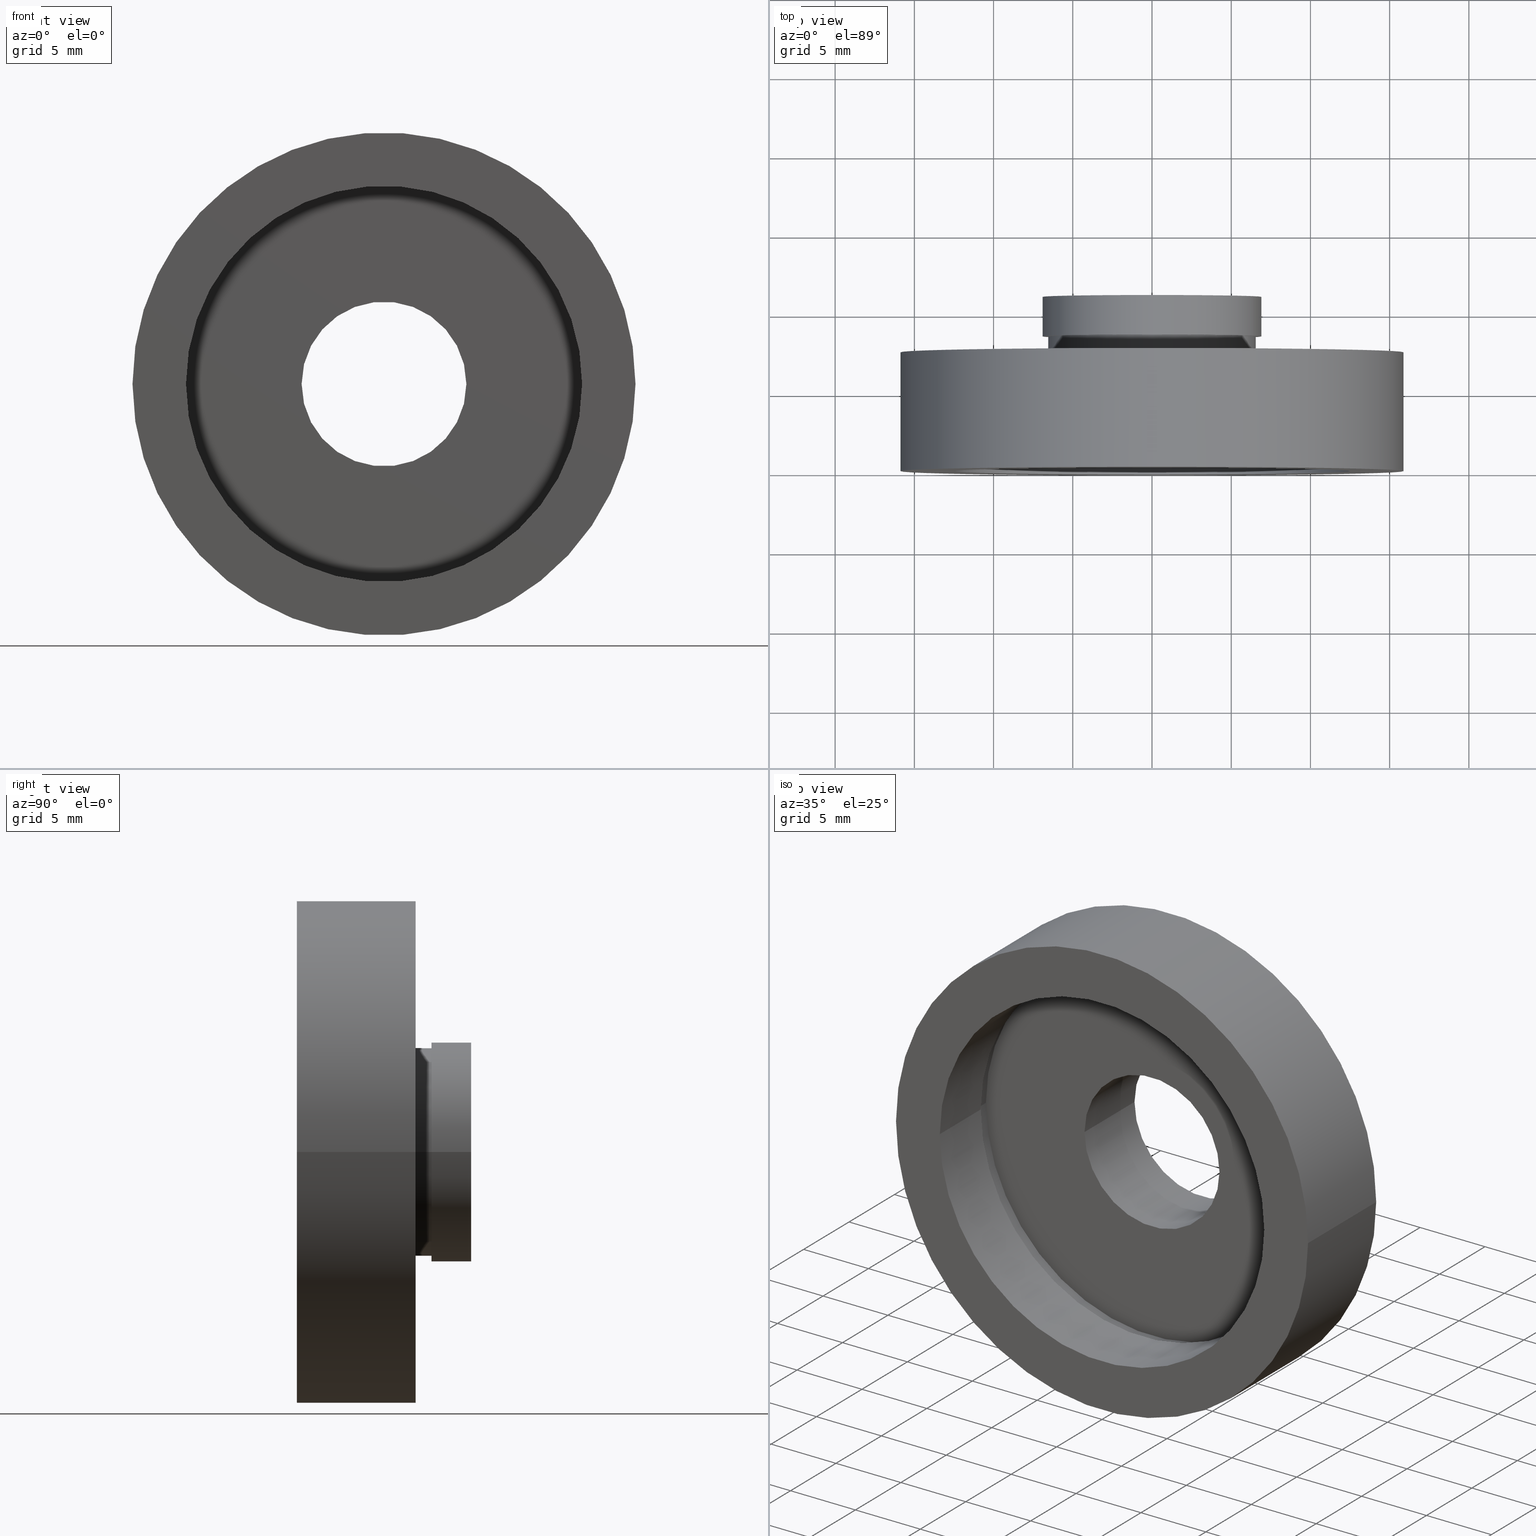
[diagram: canonical four-view strip — front | top / right | iso, engineering-drawing reading convention]
A machine part, canonical four-view strip (front | top / right | iso — engineering-drawing reading convention). The complete STEP part file that produces these views, byte-faithful:
ISO-10303-21;
HEADER;
FILE_DESCRIPTION (( 'STEP AP214' ),
    '1' );
FILE_NAME ('504131.STEP',
    '2019-10-10T02:04:13',
    ( '' ),
    ( '' ),
    'SwSTEP 2.0',
    'SolidWorks 2016',
    '' );
FILE_SCHEMA (( 'AUTOMOTIVE_DESIGN' ));
ENDSEC;

DATA;
#1 = PRODUCT_DEFINITION ( 'δ֪', '', #318, #32 ) ;
#2 = UNCERTAINTY_MEASURE_WITH_UNIT (LENGTH_MEASURE( 1.000000000000000100E-005 ), #277, 'distance_accuracy_value', 'NONE');
#3 =( NAMED_UNIT ( * ) PLANE_ANGLE_UNIT ( ) SI_UNIT ( $, .RADIAN. ) );
#4 = FACE_OUTER_BOUND ( 'NONE', #510, .T. ) ;
#5 = ORIENTED_EDGE ( 'NONE', *, *, #221, .T. ) ;
#6 = PRESENTATION_LAYER_ASSIGNMENT (  '', '', ( #48 ) ) ;
#7 = ORIENTED_EDGE ( 'NONE', *, *, #415, .F. ) ;
#8 = EDGE_CURVE ( 'NONE', #201, #610, #113, .T. ) ;
#9 = PLANE ( 'NONE',  #183 ) ;
#10 = VECTOR ( 'NONE', #122, 1000.000000000000000 ) ;
#11 = ORIENTED_EDGE ( 'NONE', *, *, #239, .T. ) ;
#12 = PRESENTATION_LAYER_ASSIGNMENT (  '', '', ( #102 ) ) ;
#13 = CARTESIAN_POINT ( 'NONE',  ( -6.900000000000000400, 10.99999999999999600, 0.0000000000000000000 ) ) ;
#14 = EDGE_CURVE ( 'NONE', #286, #478, #57, .T. ) ;
#15 = CIRCLE ( 'NONE', #581, 5.200000000000001100 ) ;
#16 = VERTEX_POINT ( 'NONE', #192 ) ;
#17 = ORIENTED_EDGE ( 'NONE', *, *, #578, .T. ) ;
#18 = DIRECTION ( 'NONE',  ( -1.000000000000000000, -1.355252715606880500E-016, 0.0000000000000000000 ) ) ;
#19 = DIRECTION ( 'NONE',  ( 1.000000000000000000, 1.224646799147351000E-016, 0.0000000000000000000 ) ) ;
#20 = AXIS2_PLACEMENT_3D ( 'NONE', #188, #521, #577 ) ;
#21 = ADVANCED_FACE ( 'NONE', ( #609, #476 ), #9, .F. ) ;
#22 = CARTESIAN_POINT ( 'NONE',  ( 0.0000000000000000000, 16.88601823708207700, 0.0000000000000000000 ) ) ;
#23 = FACE_BOUND ( 'NONE', #194, .T. ) ;
#24 = ORIENTED_EDGE ( 'NONE', *, *, #8, .F. ) ;
#25 = CARTESIAN_POINT ( 'NONE',  ( 1.149455719078122700E-015, 7.499999999999998200, 0.0000000000000000000 ) ) ;
#26 = ADVANCED_FACE ( 'NONE', ( #76 ), #234, .F. ) ;
#27 = MECHANICAL_DESIGN_GEOMETRIC_PRESENTATION_REPRESENTATION (  '', ( #419 ), #453 ) ;
#28 = DIRECTION ( 'NONE',  ( -1.224646799147351000E-016, 1.000000000000000000, -0.0000000000000000000 ) ) ;
#29 =( NAMED_UNIT ( * ) PLANE_ANGLE_UNIT ( ) SI_UNIT ( $, .RADIAN. ) );
#30 = ORIENTED_EDGE ( 'NONE', *, *, #473, .T. ) ;
#31 = MECHANICAL_DESIGN_GEOMETRIC_PRESENTATION_REPRESENTATION (  '', ( #48 ), #98 ) ;
#32 = PRODUCT_DEFINITION_CONTEXT ( 'detailed design', #368, 'design' ) ;
#33 = EDGE_CURVE ( 'NONE', #70, #493, #331, .T. ) ;
#34 =( NAMED_UNIT ( * ) SI_UNIT ( $, .STERADIAN. ) SOLID_ANGLE_UNIT ( ) );
#35 = FILL_AREA_STYLE_COLOUR ( '', #97 ) ;
#36 = DIRECTION ( 'NONE',  ( -1.224646799147351000E-016, 1.000000000000000000, -0.0000000000000000000 ) ) ;
#37 = VERTEX_POINT ( 'NONE', #13 ) ;
#38 = CARTESIAN_POINT ( 'NONE',  ( 1.516849758822328100E-015, 4.499999999999999100, 0.0000000000000000000 ) ) ;
#39 = FACE_OUTER_BOUND ( 'NONE', #603, .T. ) ;
#40 = STYLED_ITEM ( 'NONE', ( #535 ), #260 ) ;
#41 = UNCERTAINTY_MEASURE_WITH_UNIT (LENGTH_MEASURE( 1.000000000000000100E-005 ), #620, 'distance_accuracy_value', 'NONE');
#42 = DIRECTION ( 'NONE',  ( -1.224646799147351000E-016, 1.000000000000000000, -0.0000000000000000000 ) ) ;
#43 = SURFACE_STYLE_FILL_AREA ( #306 ) ;
#44 = CYLINDRICAL_SURFACE ( 'NONE', #336, 12.80000000000000100 ) ;
#45 = CARTESIAN_POINT ( 'NONE',  ( 0.0000000000000000000, 16.88601823708207700, 0.0000000000000000000 ) ) ;
#46 = EDGE_CURVE ( 'NONE', #436, #587, #451, .T. ) ;
#47 = EDGE_LOOP ( 'NONE', ( #228, #354, #125, #311 ) ) ;
#48 = STYLED_ITEM ( 'NONE', ( #342 ), #506 ) ;
#49 = ORIENTED_EDGE ( 'NONE', *, *, #330, .F. ) ;
#50 = STYLED_ITEM ( 'NONE', ( #602 ), #26 ) ;
#51 = LINE ( 'NONE', #185, #417 ) ;
#52 = CARTESIAN_POINT ( 'NONE',  ( 5.200000000000001100, 5.499999999999999100, 0.0000000000000000000 ) ) ;
#53 = FACE_BOUND ( 'NONE', #477, .T. ) ;
#54 = PLANE ( 'NONE',  #304 ) ;
#55 = FACE_OUTER_BOUND ( 'NONE', #347, .T. ) ;
#56 = CARTESIAN_POINT ( 'NONE',  ( 2.067940818438636500E-015, -3.469446951953614200E-015, 0.0000000000000000000 ) ) ;
#57 = CIRCLE ( 'NONE', #65, 6.549999999999998900 ) ;
#58 = EDGE_LOOP ( 'NONE', ( #107, #5 ) ) ;
#59 = STYLED_ITEM ( 'NONE', ( #546 ), #486 ) ;
#60 = ORIENTED_EDGE ( 'NONE', *, *, #340, .T. ) ;
#61 = DIRECTION ( 'NONE',  ( -1.224646799147351000E-016, 1.000000000000000000, -0.0000000000000000000 ) ) ;
#62 = UNCERTAINTY_MEASURE_WITH_UNIT (LENGTH_MEASURE( 1.000000000000000100E-005 ), #117, 'distance_accuracy_value', 'NONE');
#63 = CARTESIAN_POINT ( 'NONE',  ( 0.0000000000000000000, 16.88601823708207700, 0.0000000000000000000 ) ) ;
#64 = AXIS2_PLACEMENT_3D ( 'NONE', #187, #238, #284 ) ;
#65 = AXIS2_PLACEMENT_3D ( 'NONE', #527, #288, #335 ) ;
#66 = DIRECTION ( 'NONE',  ( -1.224646799147351000E-016, 1.000000000000000000, -0.0000000000000000000 ) ) ;
#67 = ORIENTED_EDGE ( 'NONE', *, *, #582, .T. ) ;
#68 = DIRECTION ( 'NONE',  ( -1.000000000000000000, -1.224646799147350700E-016, 0.0000000000000000000 ) ) ;
#69 = EDGE_CURVE ( 'NONE', #200, #99, #268, .T. ) ;
#70 = VERTEX_POINT ( 'NONE', #297 ) ;
#71 =( NAMED_UNIT ( * ) PLANE_ANGLE_UNIT ( ) SI_UNIT ( $, .RADIAN. ) );
#72 = DIRECTION ( 'NONE',  ( -1.224646799147351000E-016, 1.000000000000000000, -0.0000000000000000000 ) ) ;
#73 = AXIS2_PLACEMENT_3D ( 'NONE', #45, #573, #320 ) ;
#74 = DIRECTION ( 'NONE',  ( -1.224646799147351000E-016, 1.000000000000000000, -0.0000000000000000000 ) ) ;
#75 =( NAMED_UNIT ( * ) SI_UNIT ( $, .STERADIAN. ) SOLID_ANGLE_UNIT ( ) );
#76 = FACE_OUTER_BOUND ( 'NONE', #491, .T. ) ;
#77 = ADVANCED_FACE ( 'NONE', ( #468, #23 ), #392, .F. ) ;
#78 = CARTESIAN_POINT ( 'NONE',  ( 7.208293393765501500E-016, 10.99999999999999600, 0.0000000000000000000 ) ) ;
#79 = EDGE_CURVE ( 'NONE', #587, #436, #15, .T. ) ;
#80 = DIRECTION ( 'NONE',  ( -1.000000000000000000, 0.0000000000000000000, 0.0000000000000000000 ) ) ;
#81 = SURFACE_STYLE_USAGE ( .BOTH. , #455 ) ;
#82 = DIRECTION ( 'NONE',  ( -1.224646799147351000E-016, 1.000000000000000000, -0.0000000000000000000 ) ) ;
#83 = DIRECTION ( 'NONE',  ( -1.000000000000000000, -2.185478394931410600E-016, 0.0000000000000000000 ) ) ;
#84 = ORIENTED_EDGE ( 'NONE', *, *, #492, .T. ) ;
#85 = DIRECTION ( 'NONE',  ( -1.224646799147351000E-016, 1.000000000000000000, -0.0000000000000000000 ) ) ;
#86 = ORIENTED_EDGE ( 'NONE', *, *, #340, .F. ) ;
#87 = MECHANICAL_DESIGN_GEOMETRIC_PRESENTATION_REPRESENTATION (  '', ( #424 ), #140 ) ;
#88 = CARTESIAN_POINT ( 'NONE',  ( 0.0000000000000000000, 16.88601823708207700, 0.0000000000000000000 ) ) ;
#89 = CYLINDRICAL_SURFACE ( 'NONE', #490, 6.900000000000001200 ) ;
#90 = CARTESIAN_POINT ( 'NONE',  ( -6.899999999999999500, 8.500000000000000000, 0.0000000000000000000 ) ) ;
#91 = EDGE_CURVE ( 'NONE', #478, #286, #338, .T. ) ;
#92 = VECTOR ( 'NONE', #337, 1000.000000000000000 ) ;
#93 = EDGE_LOOP ( 'NONE', ( #434, #562, #580, #579 ) ) ;
#94 = PLANE ( 'NONE',  #198 ) ;
#95 = COLOUR_RGB ( '',1.000000000000000000, 1.000000000000000000, 1.000000000000000000 ) ;
#96 = AXIS2_PLACEMENT_3D ( 'NONE', #38, #375, #474 ) ;
#97 = COLOUR_RGB ( '',1.000000000000000000, 1.000000000000000000, 1.000000000000000000 ) ;
#98 =( GEOMETRIC_REPRESENTATION_CONTEXT ( 3 ) GLOBAL_UNCERTAINTY_ASSIGNED_CONTEXT ( ( #2 ) ) GLOBAL_UNIT_ASSIGNED_CONTEXT ( ( #277, #3, #571 ) ) REPRESENTATION_CONTEXT ( 'NONE', 'WORKASPACE' ) );
#99 = VERTEX_POINT ( 'NONE', #431 ) ;
#100 = ORIENTED_EDGE ( 'NONE', *, *, #425, .T. ) ;
#101 = LINE ( 'NONE', #618, #428 ) ;
#102 = STYLED_ITEM ( 'NONE', ( #135 ), #557 ) ;
#103 = CIRCLE ( 'NONE', #153, 15.87500000000000000 ) ;
#104 = COLOUR_RGB ( '',1.000000000000000000, 1.000000000000000000, 1.000000000000000000 ) ;
#105 = ORIENTED_EDGE ( 'NONE', *, *, #298, .T. ) ;
#106 = DIRECTION ( 'NONE',  ( -1.000000000000000000, -1.224646799147351200E-016, 0.0000000000000000000 ) ) ;
#107 = ORIENTED_EDGE ( 'NONE', *, *, #177, .T. ) ;
#108 = DIRECTION ( 'NONE',  ( -1.000000000000000000, -1.224646799147351000E-016, 0.0000000000000000000 ) ) ;
#109 = UNCERTAINTY_MEASURE_WITH_UNIT (LENGTH_MEASURE( 1.000000000000000100E-005 ), #321, 'distance_accuracy_value', 'NONE');
#110 = EDGE_CURVE ( 'NONE', #356, #407, #364, .T. ) ;
#111 = DIRECTION ( 'NONE',  ( -1.224646799147351000E-016, 1.000000000000000000, 0.0000000000000000000 ) ) ;
#112 = SURFACE_SIDE_STYLE ('',( #372 ) ) ;
#113 = CIRCLE ( 'NONE', #525, 6.900000000000000400 ) ;
#114 = ORIENTED_EDGE ( 'NONE', *, *, #69, .F. ) ;
#115 = ORIENTED_EDGE ( 'NONE', *, *, #473, .F. ) ;
#116 = ADVANCED_FACE ( 'NONE', ( #137 ), #44, .F. ) ;
#117 =( LENGTH_UNIT ( ) NAMED_UNIT ( * ) SI_UNIT ( .MILLI., .METRE. ) );
#118 = SURFACE_STYLE_FILL_AREA ( #624 ) ;
#119 = DIRECTION ( 'NONE',  ( -1.224646799147351000E-016, 1.000000000000000000, -0.0000000000000000000 ) ) ;
#120 = DIRECTION ( 'NONE',  ( -1.000000000000000000, -1.224646799147351000E-016, 0.0000000000000000000 ) ) ;
#121 = AXIS2_PLACEMENT_3D ( 'NONE', #256, #209, #167 ) ;
#122 = DIRECTION ( 'NONE',  ( -1.224646799147351000E-016, 1.000000000000000000, -0.0000000000000000000 ) ) ;
#123 = CARTESIAN_POINT ( 'NONE',  ( 0.0000000000000000000, 16.88601823708207700, 0.0000000000000000000 ) ) ;
#124 = CYLINDRICAL_SURFACE ( 'NONE', #572, 15.87500000000000000 ) ;
#125 = ORIENTED_EDGE ( 'NONE', *, *, #508, .F. ) ;
#126 = CARTESIAN_POINT ( 'NONE',  ( -6.549999999999998000, 8.500000000000000000, 0.0000000000000000000 ) ) ;
#127 = EDGE_LOOP ( 'NONE', ( #168, #176 ) ) ;
#128 = EDGE_CURVE ( 'NONE', #356, #478, #246, .T. ) ;
#129 = FILL_AREA_STYLE_COLOUR ( '', #104 ) ;
#130 = CIRCLE ( 'NONE', #159, 6.900000000000001200 ) ;
#131 = ADVANCED_FACE ( 'NONE', ( #560, #484 ), #54, .F. ) ;
#132 = CARTESIAN_POINT ( 'NONE',  ( 12.50000000000000200, 4.500000000000000900, 1.530808498934191500E-015 ) ) ;
#133 =( GEOMETRIC_REPRESENTATION_CONTEXT ( 3 ) GLOBAL_UNCERTAINTY_ASSIGNED_CONTEXT ( ( #225 ) ) GLOBAL_UNIT_ASSIGNED_CONTEXT ( ( #461, #616, #275 ) ) REPRESENTATION_CONTEXT ( 'NONE', 'WORKASPACE' ) );
#134 = SURFACE_SIDE_STYLE ('',( #482 ) ) ;
#135 = PRESENTATION_STYLE_ASSIGNMENT (( #398 ) ) ;
#136 = CARTESIAN_POINT ( 'NONE',  ( 0.0000000000000000000, 16.88601823708207700, 0.0000000000000000000 ) ) ;
#137 = FACE_OUTER_BOUND ( 'NONE', #529, .T. ) ;
#138 = ORIENTED_EDGE ( 'NONE', *, *, #405, .F. ) ;
#139 = ORIENTED_EDGE ( 'NONE', *, *, #389, .F. ) ;
#140 =( GEOMETRIC_REPRESENTATION_CONTEXT ( 3 ) GLOBAL_UNCERTAINTY_ASSIGNED_CONTEXT ( ( #328 ) ) GLOBAL_UNIT_ASSIGNED_CONTEXT ( ( #274, #29, #362 ) ) REPRESENTATION_CONTEXT ( 'NONE', 'WORKASPACE' ) );
#141 = SURFACE_STYLE_USAGE ( .BOTH. , #134 ) ;
#142 = EDGE_CURVE ( 'NONE', #99, #200, #240, .T. ) ;
#143 = DIRECTION ( 'NONE',  ( -1.224646799147351000E-016, 1.000000000000000000, -0.0000000000000000000 ) ) ;
#144 = DIRECTION ( 'NONE',  ( -1.224646799147351000E-016, 1.000000000000000000, -0.0000000000000000000 ) ) ;
#145 = APPLICATION_PROTOCOL_DEFINITION ( 'draft international standard', 'automotive_design', 1998, #232 ) ;
#146 = ORIENTED_EDGE ( 'NONE', *, *, #128, .F. ) ;
#147 = CARTESIAN_POINT ( 'NONE',  ( 0.0000000000000000000, 0.0000000000000000000, 0.0000000000000000000 ) ) ;
#148 = MECHANICAL_DESIGN_GEOMETRIC_PRESENTATION_REPRESENTATION (  '', ( #59 ), #559 ) ;
#149 = FILL_AREA_STYLE_COLOUR ( '', #95 ) ;
#150 = CARTESIAN_POINT ( 'NONE',  ( 5.200000000000001100, 11.00000000000000000, 0.0000000000000000000 ) ) ;
#151 = ORIENTED_EDGE ( 'NONE', *, *, #533, .F. ) ;
#152 = VERTEX_POINT ( 'NONE', #299 ) ;
#153 = AXIS2_PLACEMENT_3D ( 'NONE', #25, #253, #212 ) ;
#154 = ORIENTED_EDGE ( 'NONE', *, *, #363, .T. ) ;
#155 = EDGE_CURVE ( 'NONE', #365, #152, #421, .T. ) ;
#156 = DIRECTION ( 'NONE',  ( -1.000000000000000000, 0.0000000000000000000, 0.0000000000000000000 ) ) ;
#157 = CARTESIAN_POINT ( 'NONE',  ( 7.208293393765498600E-016, 11.00000000000000000, 0.0000000000000000000 ) ) ;
#158 = CYLINDRICAL_SURFACE ( 'NONE', #263, 15.87500000000000000 ) ;
#159 = AXIS2_PLACEMENT_3D ( 'NONE', #370, #329, #376 ) ;
#160 = DIRECTION ( 'NONE',  ( -1.000000000000000000, 0.0000000000000000000, 0.0000000000000000000 ) ) ;
#161 = ORIENTED_EDGE ( 'NONE', *, *, #298, .F. ) ;
#162 = SURFACE_STYLE_USAGE ( .BOTH. , #112 ) ;
#163 =( NAMED_UNIT ( * ) PLANE_ANGLE_UNIT ( ) SI_UNIT ( $, .RADIAN. ) );
#164 = CARTESIAN_POINT ( 'NONE',  ( 12.50000000000000200, 4.500000000000000000, 0.0000000000000000000 ) ) ;
#165 = CARTESIAN_POINT ( 'NONE',  ( 5.200000000000001100, 5.500000000000000900, 6.368163355566236400E-016 ) ) ;
#166 = COLOUR_RGB ( '',1.000000000000000000, 1.000000000000000000, 1.000000000000000000 ) ;
#167 = DIRECTION ( 'NONE',  ( -1.000000000000000000, -1.387778780781445700E-016, 0.0000000000000000000 ) ) ;
#168 = ORIENTED_EDGE ( 'NONE', *, *, #505, .F. ) ;
#169 = SURFACE_STYLE_USAGE ( .BOTH. , #502 ) ;
#170 = FACE_BOUND ( 'NONE', #195, .T. ) ;
#171 = PLANE ( 'NONE',  #564 ) ;
#172 = VECTOR ( 'NONE', #28, 1000.000000000000000 ) ;
#173 = DIRECTION ( 'NONE',  ( -1.224646799147351000E-016, 1.000000000000000000, -0.0000000000000000000 ) ) ;
#174 = VERTEX_POINT ( 'NONE', #165 ) ;
#175 = CARTESIAN_POINT ( 'NONE',  ( 1.516849758822328100E-015, 4.499999999999999100, 0.0000000000000000000 ) ) ;
#176 = ORIENTED_EDGE ( 'NONE', *, *, #110, .F. ) ;
#177 = EDGE_CURVE ( 'NONE', #423, #248, #227, .T. ) ;
#178 =( NAMED_UNIT ( * ) PLANE_ANGLE_UNIT ( ) SI_UNIT ( $, .RADIAN. ) );
#179 = CARTESIAN_POINT ( 'NONE',  ( -15.87500000000000000, 16.88601823708207300, 0.0000000000000000000 ) ) ;
#180 = DIRECTION ( 'NONE',  ( -1.000000000000000000, -1.224646799147351200E-016, 0.0000000000000000000 ) ) ;
#181 = ORIENTED_EDGE ( 'NONE', *, *, #8, .T. ) ;
#182 = SURFACE_STYLE_USAGE ( .BOTH. , #283 ) ;
#183 = AXIS2_PLACEMENT_3D ( 'NONE', #52, #586, #204 ) ;
#184 = PRESENTATION_STYLE_ASSIGNMENT (( #182 ) ) ;
#185 = CARTESIAN_POINT ( 'NONE',  ( 12.80000000000000100, 16.88601823708207700, 1.567547902908612200E-015 ) ) ;
#186 =( NAMED_UNIT ( * ) PLANE_ANGLE_UNIT ( ) SI_UNIT ( $, .RADIAN. ) );
#187 = CARTESIAN_POINT ( 'NONE',  ( 0.0000000000000000000, 16.88601823708207700, 0.0000000000000000000 ) ) ;
#188 = CARTESIAN_POINT ( 'NONE',  ( 1.149455719078122500E-015, 7.500000000000000000, 0.0000000000000000000 ) ) ;
#189 = VERTEX_POINT ( 'NONE', #396 ) ;
#190 = ORIENTED_EDGE ( 'NONE', *, *, #514, .F. ) ;
#191 = AXIS2_PLACEMENT_3D ( 'NONE', #123, #553, #80 ) ;
#192 = CARTESIAN_POINT ( 'NONE',  ( -12.49999999999999800, 4.499999999999997300, 0.0000000000000000000 ) ) ;
#193 = CIRCLE ( 'NONE', #524, 12.80000000000000100 ) ;
#194 = EDGE_LOOP ( 'NONE', ( #595, #332 ) ) ;
#195 = EDGE_LOOP ( 'NONE', ( #622, #319 ) ) ;
#196 = CIRCLE ( 'NONE', #412, 12.50000000000000000 ) ;
#197 = DIRECTION ( 'NONE',  ( -1.000000000000000000, 0.0000000000000000000, 0.0000000000000000000 ) ) ;
#198 = AXIS2_PLACEMENT_3D ( 'NONE', #150, #568, #614 ) ;
#199 = FACE_OUTER_BOUND ( 'NONE', #374, .T. ) ;
#200 = VERTEX_POINT ( 'NONE', #497 ) ;
#201 = VERTEX_POINT ( 'NONE', #548 ) ;
#202 = EDGE_CURVE ( 'NONE', #16, #377, #279, .T. ) ;
#203 = DIRECTION ( 'NONE',  ( -1.224646799147351000E-016, 1.000000000000000000, -0.0000000000000000000 ) ) ;
#204 = DIRECTION ( 'NONE',  ( -1.000000000000000000, -1.224646799147351000E-016, 0.0000000000000000000 ) ) ;
#205 = DIRECTION ( 'NONE',  ( -1.224646799147351000E-016, 1.000000000000000000, -0.0000000000000000000 ) ) ;
#206 = VERTEX_POINT ( 'NONE', #217 ) ;
#207 = DIRECTION ( 'NONE',  ( 1.224646799147351000E-016, -1.000000000000000000, 0.0000000000000000000 ) ) ;
#208 = ORIENTED_EDGE ( 'NONE', *, *, #155, .T. ) ;
#209 = DIRECTION ( 'NONE',  ( -1.224646799147351000E-016, 1.000000000000000000, -0.0000000000000000000 ) ) ;
#210 = CARTESIAN_POINT ( 'NONE',  ( 1.149455719078122700E-015, 7.499999999999998200, 0.0000000000000000000 ) ) ;
#211 = COLOUR_RGB ( '',1.000000000000000000, 1.000000000000000000, 1.000000000000000000 ) ;
#212 = DIRECTION ( 'NONE',  ( -1.000000000000000000, -1.092739197465705300E-016, 0.0000000000000000000 ) ) ;
#213 = ADVANCED_FACE ( 'NONE', ( #516 ), #124, .T. ) ;
#214 = AXIS2_PLACEMENT_3D ( 'NONE', #488, #537, #255 ) ;
#215 = VECTOR ( 'NONE', #85, 1000.000000000000000 ) ;
#216 = CIRCLE ( 'NONE', #512, 5.200000000000000200 ) ;
#217 = CARTESIAN_POINT ( 'NONE',  ( 6.900000000000002100, 10.99999999999999600, 8.450062914116738600E-016 ) ) ;
#218 = ADVANCED_FACE ( 'NONE', ( #619, #262 ), #352, .F. ) ;
#219 = DIRECTION ( 'NONE',  ( -1.000000000000000000, -1.355252715606880500E-016, 0.0000000000000000000 ) ) ;
#220 = LINE ( 'NONE', #445, #10 ) ;
#221 = EDGE_CURVE ( 'NONE', #248, #423, #103, .T. ) ;
#222 = ORIENTED_EDGE ( 'NONE', *, *, #46, .T. ) ;
#223 = PRODUCT ( '504131', '504131', '', ( #324 ) ) ;
#224 = DIRECTION ( 'NONE',  ( -1.000000000000000000, 0.0000000000000000000, 0.0000000000000000000 ) ) ;
#225 = UNCERTAINTY_MEASURE_WITH_UNIT (LENGTH_MEASURE( 1.000000000000000100E-005 ), #461, 'distance_accuracy_value', 'NONE');
#226 = CYLINDRICAL_SURFACE ( 'NONE', #257, 5.200000000000000200 ) ;
#227 = CIRCLE ( 'NONE', #501, 15.87500000000000000 ) ;
#228 = ORIENTED_EDGE ( 'NONE', *, *, #481, .T. ) ;
#229 = PRESENTATION_LAYER_ASSIGNMENT (  '', '', ( #424 ) ) ;
#230 = CARTESIAN_POINT ( 'NONE',  ( -12.79999999999999900, 4.499999999999997300, 0.0000000000000000000 ) ) ;
#231 = ORIENTED_EDGE ( 'NONE', *, *, #221, .F. ) ;
#232 = APPLICATION_CONTEXT ( 'automotive_design' ) ;
#233 = FILL_AREA_STYLE ('',( #519 ) ) ;
#234 = CYLINDRICAL_SURFACE ( 'NONE', #380, 12.50000000000000000 ) ;
#235 = EDGE_LOOP ( 'NONE', ( #146, #500, #84, #252 ) ) ;
#236 = ORIENTED_EDGE ( 'NONE', *, *, #69, .T. ) ;
#237 = CARTESIAN_POINT ( 'NONE',  ( 1.026991039163387500E-015, 8.500000000000000000, 0.0000000000000000000 ) ) ;
#238 = DIRECTION ( 'NONE',  ( -1.224646799147351000E-016, 1.000000000000000000, -0.0000000000000000000 ) ) ;
#239 = EDGE_CURVE ( 'NONE', #365, #189, #220, .T. ) ;
#240 = CIRCLE ( 'NONE', #371, 15.87499999999999600 ) ;
#241 = ORIENTED_EDGE ( 'NONE', *, *, #177, .F. ) ;
#242 = ORIENTED_EDGE ( 'NONE', *, *, #363, .F. ) ;
#243 = DIRECTION ( 'NONE',  ( -1.224646799147351000E-016, 1.000000000000000000, -0.0000000000000000000 ) ) ;
#244 = LINE ( 'NONE', #472, #598 ) ;
#245 = PRESENTATION_LAYER_ASSIGNMENT (  '', '', ( #40 ) ) ;
#246 = LINE ( 'NONE', #590, #92 ) ;
#247 = CLOSED_SHELL ( 'NONE', ( #213, #447, #260, #506, #116, #358, #218, #26, #308, #258, #21, #312, #541, #551, #77, #556, #131, #606 ) ) ;
#248 = VERTEX_POINT ( 'NONE', #450 ) ;
#249 = DIRECTION ( 'NONE',  ( -1.224646799147351000E-016, 1.000000000000000000, -0.0000000000000000000 ) ) ;
#250 =( NAMED_UNIT ( * ) PLANE_ANGLE_UNIT ( ) SI_UNIT ( $, .RADIAN. ) );
#251 = PRESENTATION_LAYER_ASSIGNMENT (  '', '', ( #59 ) ) ;
#252 = ORIENTED_EDGE ( 'NONE', *, *, #91, .F. ) ;
#253 = DIRECTION ( 'NONE',  ( -1.224646799147351000E-016, 1.000000000000000000, -0.0000000000000000000 ) ) ;
#254 = ORIENTED_EDGE ( 'NONE', *, *, #481, .F. ) ;
#255 = DIRECTION ( 'NONE',  ( -1.000000000000000000, 0.0000000000000000000, 0.0000000000000000000 ) ) ;
#256 = CARTESIAN_POINT ( 'NONE',  ( 1.516849758822328100E-015, 4.499999999999999100, 0.0000000000000000000 ) ) ;
#257 = AXIS2_PLACEMENT_3D ( 'NONE', #438, #460, #310 ) ;
#258 = ADVANCED_FACE ( 'NONE', ( #199 ), #433, .F. ) ;
#259 = DIRECTION ( 'NONE',  ( -1.000000000000000000, -1.355252715606880500E-016, 0.0000000000000000000 ) ) ;
#260 = ADVANCED_FACE ( 'NONE', ( #294 ), #89, .T. ) ;
#261 = DIRECTION ( 'NONE',  ( -1.000000000000000000, 0.0000000000000000000, 0.0000000000000000000 ) ) ;
#262 = FACE_BOUND ( 'NONE', #269, .T. ) ;
#263 = AXIS2_PLACEMENT_3D ( 'NONE', #565, #143, #83 ) ;
#264 = CARTESIAN_POINT ( 'NONE',  ( 1.394385078907592800E-015, 5.500000000000000000, 0.0000000000000000000 ) ) ;
#265 = DIRECTION ( 'NONE',  ( -1.224646799147351000E-016, 1.000000000000000000, -0.0000000000000000000 ) ) ;
#266 = CARTESIAN_POINT ( 'NONE',  ( -5.200000000000000200, 11.00000000000000000, 0.0000000000000000000 ) ) ;
#267 = CARTESIAN_POINT ( 'NONE',  ( 6.550000000000000700, 7.500000000000000900, 8.021436534415164200E-016 ) ) ;
#268 = CIRCLE ( 'NONE', #443, 15.87499999999999600 ) ;
#269 = EDGE_LOOP ( 'NONE', ( #333, #523 ) ) ;
#270 = EDGE_CURVE ( 'NONE', #378, #189, #193, .T. ) ;
#271 = ORIENTED_EDGE ( 'NONE', *, *, #202, .F. ) ;
#272 = CARTESIAN_POINT ( 'NONE',  ( 1.394385078907592800E-015, 5.500000000000000000, 0.0000000000000000000 ) ) ;
#273 = SURFACE_STYLE_USAGE ( .BOTH. , #278 ) ;
#274 =( LENGTH_UNIT ( ) NAMED_UNIT ( * ) SI_UNIT ( .MILLI., .METRE. ) );
#275 =( NAMED_UNIT ( * ) SI_UNIT ( $, .STERADIAN. ) SOLID_ANGLE_UNIT ( ) );
#276 = VECTOR ( 'NONE', #72, 1000.000000000000000 ) ;
#277 =( LENGTH_UNIT ( ) NAMED_UNIT ( * ) SI_UNIT ( .MILLI., .METRE. ) );
#278 = SURFACE_SIDE_STYLE ('',( #300 ) ) ;
#279 = CIRCLE ( 'NONE', #121, 12.50000000000000000 ) ;
#280 =( NAMED_UNIT ( * ) PLANE_ANGLE_UNIT ( ) SI_UNIT ( $, .RADIAN. ) );
#281 = AXIS2_PLACEMENT_3D ( 'NONE', #341, #435, #390 ) ;
#282 = SURFACE_STYLE_FILL_AREA ( #233 ) ;
#283 = SURFACE_SIDE_STYLE ('',( #282 ) ) ;
#284 = DIRECTION ( 'NONE',  ( -1.000000000000000000, 0.0000000000000000000, 0.0000000000000000000 ) ) ;
#285 = SURFACE_STYLE_USAGE ( .BOTH. , #322 ) ;
#286 = VERTEX_POINT ( 'NONE', #126 ) ;
#287 = DIRECTION ( 'NONE',  ( -1.000000000000000000, 0.0000000000000000000, 0.0000000000000000000 ) ) ;
#288 = DIRECTION ( 'NONE',  ( -1.224646799147351000E-016, 1.000000000000000000, -0.0000000000000000000 ) ) ;
#289 = EDGE_LOOP ( 'NONE', ( #208, #386 ) ) ;
#290 =( NAMED_UNIT ( * ) SI_UNIT ( $, .STERADIAN. ) SOLID_ANGLE_UNIT ( ) );
#291 = CYLINDRICAL_SURFACE ( 'NONE', #592, 12.50000000000000000 ) ;
#292 = AXIS2_PLACEMENT_3D ( 'NONE', #88, #418, #413 ) ;
#293 = CARTESIAN_POINT ( 'NONE',  ( 2.067940818438636100E-015, 0.0000000000000000000, 0.0000000000000000000 ) ) ;
#294 = FACE_OUTER_BOUND ( 'NONE', #47, .T. ) ;
#295 = EDGE_LOOP ( 'NONE', ( #86, #30, #594, #49 ) ) ;
#296 = ORIENTED_EDGE ( 'NONE', *, *, #33, .F. ) ;
#297 = CARTESIAN_POINT ( 'NONE',  ( 12.50000000000000200, 1.530808498934189000E-015, 1.530808498934191500E-015 ) ) ;
#298 = EDGE_CURVE ( 'NONE', #189, #378, #475, .T. ) ;
#299 = CARTESIAN_POINT ( 'NONE',  ( 12.80000000000000200, 4.500000000000000900, 1.567547902908612200E-015 ) ) ;
#300 = SURFACE_STYLE_FILL_AREA ( #570 ) ;
#301 = EDGE_LOOP ( 'NONE', ( #236, #67, #241, #422 ) ) ;
#302 = CARTESIAN_POINT ( 'NONE',  ( 2.067940818438636500E-015, -3.469446951953614200E-015, 0.0000000000000000000 ) ) ;
#303 = FILL_AREA_STYLE ('',( #549 ) ) ;
#304 = AXIS2_PLACEMENT_3D ( 'NONE', #487, #207, #596 ) ;
#305 = UNCERTAINTY_MEASURE_WITH_UNIT (LENGTH_MEASURE( 1.000000000000000100E-005 ), #315, 'distance_accuracy_value', 'NONE');
#306 = FILL_AREA_STYLE ('',( #129 ) ) ;
#307 = EDGE_CURVE ( 'NONE', #610, #37, #395, .T. ) ;
#308 = ADVANCED_FACE ( 'NONE', ( #53, #543 ), #171, .F. ) ;
#309 = CARTESIAN_POINT ( 'NONE',  ( 5.200000000000001100, 11.00000000000000000, 6.368163355566236400E-016 ) ) ;
#310 = DIRECTION ( 'NONE',  ( -1.000000000000000000, 0.0000000000000000000, 0.0000000000000000000 ) ) ;
#311 = ORIENTED_EDGE ( 'NONE', *, *, #307, .F. ) ;
#312 = ADVANCED_FACE ( 'NONE', ( #617 ), #226, .F. ) ;
#313 = CARTESIAN_POINT ( 'NONE',  ( -6.549999999999998900, 7.499999999999999100, 0.0000000000000000000 ) ) ;
#314 =( GEOMETRIC_REPRESENTATION_CONTEXT ( 3 ) GLOBAL_UNCERTAINTY_ASSIGNED_CONTEXT ( ( #305 ) ) GLOBAL_UNIT_ASSIGNED_CONTEXT ( ( #315, #178, #563 ) ) REPRESENTATION_CONTEXT ( 'NONE', 'WORKASPACE' ) );
#315 =( LENGTH_UNIT ( ) NAMED_UNIT ( * ) SI_UNIT ( .MILLI., .METRE. ) );
#316 = EDGE_LOOP ( 'NONE', ( #388, #17 ) ) ;
#317 = AXIS2_PLACEMENT_3D ( 'NONE', #498, #496, #120 ) ;
#318 = PRODUCT_DEFINITION_FORMATION_WITH_SPECIFIED_SOURCE ( '�κ�', '', #223, .NOT_KNOWN. ) ;
#319 = ORIENTED_EDGE ( 'NONE', *, *, #79, .F. ) ;
#320 = DIRECTION ( 'NONE',  ( -1.000000000000000000, 0.0000000000000000000, 0.0000000000000000000 ) ) ;
#321 =( LENGTH_UNIT ( ) NAMED_UNIT ( * ) SI_UNIT ( .MILLI., .METRE. ) );
#322 = SURFACE_SIDE_STYLE ('',( #118 ) ) ;
#323 = LINE ( 'NONE', #360, #554 ) ;
#324 = PRODUCT_CONTEXT ( 'NONE', #232, 'mechanical' ) ;
#325 = DIRECTION ( 'NONE',  ( -1.000000000000000000, 0.0000000000000000000, 0.0000000000000000000 ) ) ;
#326 =( GEOMETRIC_REPRESENTATION_CONTEXT ( 3 ) GLOBAL_UNCERTAINTY_ASSIGNED_CONTEXT ( ( #384 ) ) GLOBAL_UNIT_ASSIGNED_CONTEXT ( ( #406, #71, #75 ) ) REPRESENTATION_CONTEXT ( 'NONE', 'WORKASPACE' ) );
#327 = ORIENTED_EDGE ( 'NONE', *, *, #432, .F. ) ;
#328 = UNCERTAINTY_MEASURE_WITH_UNIT (LENGTH_MEASURE( 1.000000000000000100E-005 ), #274, 'distance_accuracy_value', 'NONE');
#329 = DIRECTION ( 'NONE',  ( -1.224646799147351000E-016, 1.000000000000000000, -0.0000000000000000000 ) ) ;
#330 = EDGE_CURVE ( 'NONE', #339, #436, #449, .T. ) ;
#331 = CIRCLE ( 'NONE', #429, 12.50000000000000000 ) ;
#332 = ORIENTED_EDGE ( 'NONE', *, *, #91, .T. ) ;
#333 = ORIENTED_EDGE ( 'NONE', *, *, #405, .T. ) ;
#334 = VECTOR ( 'NONE', #509, 1000.000000000000000 ) ;
#335 = DIRECTION ( 'NONE',  ( -1.000000000000000000, 0.0000000000000000000, 0.0000000000000000000 ) ) ;
#336 = AXIS2_PLACEMENT_3D ( 'NONE', #534, #593, #160 ) ;
#337 = DIRECTION ( 'NONE',  ( -1.224646799147351000E-016, 1.000000000000000000, -0.0000000000000000000 ) ) ;
#338 = CIRCLE ( 'NONE', #214, 6.549999999999998900 ) ;
#339 = VERTEX_POINT ( 'NONE', #555 ) ;
#340 = EDGE_CURVE ( 'NONE', #174, #339, #465, .T. ) ;
#341 = CARTESIAN_POINT ( 'NONE',  ( 7.208293393765498600E-016, 11.00000000000000000, 0.0000000000000000000 ) ) ;
#342 = PRESENTATION_STYLE_ASSIGNMENT (( #285 ) ) ;
#343 =( NAMED_UNIT ( * ) SI_UNIT ( $, .STERADIAN. ) SOLID_ANGLE_UNIT ( ) );
#344 = FILL_AREA_STYLE ('',( #399 ) ) ;
#345 = COLOUR_RGB ( '',1.000000000000000000, 1.000000000000000000, 1.000000000000000000 ) ;
#346 = ORIENTED_EDGE ( 'NONE', *, *, #415, .T. ) ;
#347 = EDGE_LOOP ( 'NONE', ( #611, #381, #100, #231 ) ) ;
#348 = DIRECTION ( 'NONE',  ( -1.224646799147351000E-016, 1.000000000000000000, -0.0000000000000000000 ) ) ;
#349 = PRESENTATION_LAYER_ASSIGNMENT (  '', '', ( #441 ) ) ;
#350 = PRODUCT_RELATED_PRODUCT_CATEGORY ( 'part', '', ( #223 ) ) ;
#351 = CIRCLE ( 'NONE', #20, 6.549999999999999800 ) ;
#352 = PLANE ( 'NONE',  #317 ) ;
#353 = CARTESIAN_POINT ( 'NONE',  ( 1.394385078907593000E-015, 5.499999999999998200, 0.0000000000000000000 ) ) ;
#354 = ORIENTED_EDGE ( 'NONE', *, *, #514, .T. ) ;
#355 = SURFACE_SIDE_STYLE ('',( #43 ) ) ;
#356 = VERTEX_POINT ( 'NONE', #267 ) ;
#357 = AXIS2_PLACEMENT_3D ( 'NONE', #78, #401, #517 ) ;
#358 = ADVANCED_FACE ( 'NONE', ( #4 ), #291, .F. ) ;
#359 = CIRCLE ( 'NONE', #96, 12.50000000000000000 ) ;
#360 = CARTESIAN_POINT ( 'NONE',  ( -12.50000000000000000, 16.88601823708207700, 0.0000000000000000000 ) ) ;
#361 = AXIS2_PLACEMENT_3D ( 'NONE', #591, #542, #393 ) ;
#362 =( NAMED_UNIT ( * ) SI_UNIT ( $, .STERADIAN. ) SOLID_ANGLE_UNIT ( ) );
#363 = EDGE_CURVE ( 'NONE', #493, #16, #323, .T. ) ;
#364 = CIRCLE ( 'NONE', #615, 6.549999999999999800 ) ;
#365 = VERTEX_POINT ( 'NONE', #230 ) ;
#366 = DIRECTION ( 'NONE',  ( -1.224646799147351000E-016, 1.000000000000000000, -0.0000000000000000000 ) ) ;
#367 = ORIENTED_EDGE ( 'NONE', *, *, #202, .T. ) ;
#368 = APPLICATION_CONTEXT ( 'automotive_design' ) ;
#369 = DIRECTION ( 'NONE',  ( 0.0000000000000000000, 0.0000000000000000000, 1.000000000000000000 ) ) ;
#370 = CARTESIAN_POINT ( 'NONE',  ( 7.208293393765501500E-016, 10.99999999999999600, 0.0000000000000000000 ) ) ;
#371 = AXIS2_PLACEMENT_3D ( 'NONE', #302, #119, #68 ) ;
#372 = SURFACE_STYLE_FILL_AREA ( #382 ) ;
#373 = FILL_AREA_STYLE_COLOUR ( '', #166 ) ;
#374 = EDGE_LOOP ( 'NONE', ( #518, #569, #11, #105 ) ) ;
#375 = DIRECTION ( 'NONE',  ( -1.224646799147351000E-016, 1.000000000000000000, -0.0000000000000000000 ) ) ;
#376 = DIRECTION ( 'NONE',  ( -1.000000000000000000, 0.0000000000000000000, 0.0000000000000000000 ) ) ;
#377 = VERTEX_POINT ( 'NONE', #132 ) ;
#378 = VERTEX_POINT ( 'NONE', #507 ) ;
#379 = AXIS2_PLACEMENT_3D ( 'NONE', #264, #173, #458 ) ;
#380 = AXIS2_PLACEMENT_3D ( 'NONE', #437, #66, #197 ) ;
#381 = ORIENTED_EDGE ( 'NONE', *, *, #142, .T. ) ;
#382 = FILL_AREA_STYLE ('',( #589 ) ) ;
#383 = DIRECTION ( 'NONE',  ( -1.000000000000000000, -1.224646799147350700E-016, 0.0000000000000000000 ) ) ;
#384 = UNCERTAINTY_MEASURE_WITH_UNIT (LENGTH_MEASURE( 1.000000000000000100E-005 ), #406, 'distance_accuracy_value', 'NONE');
#385 = CARTESIAN_POINT ( 'NONE',  ( 6.900000000000001200, 8.500000000000000000, 0.0000000000000000000 ) ) ;
#386 = ORIENTED_EDGE ( 'NONE', *, *, #389, .T. ) ;
#387 = MECHANICAL_DESIGN_GEOMETRIC_PRESENTATION_REPRESENTATION (  '', ( #441 ), #314 ) ;
#388 = ORIENTED_EDGE ( 'NONE', *, *, #508, .T. ) ;
#389 = EDGE_CURVE ( 'NONE', #152, #365, #430, .T. ) ;
#390 = DIRECTION ( 'NONE',  ( -1.000000000000000000, 0.0000000000000000000, 0.0000000000000000000 ) ) ;
#391 = DIRECTION ( 'NONE',  ( -1.224646799147351000E-016, 1.000000000000000000, -0.0000000000000000000 ) ) ;
#392 = PLANE ( 'NONE',  #547 ) ;
#393 = DIRECTION ( 'NONE',  ( -1.000000000000000000, -1.355252715606880500E-016, 0.0000000000000000000 ) ) ;
#394 = PRESENTATION_STYLE_ASSIGNMENT (( #141 ) ) ;
#395 = LINE ( 'NONE', #597, #276 ) ;
#396 = CARTESIAN_POINT ( 'NONE',  ( -12.79999999999999900, 5.499999999999996400, 0.0000000000000000000 ) ) ;
#397 = DIRECTION ( 'NONE',  ( -1.000000000000000000, -2.185478394931410600E-016, 0.0000000000000000000 ) ) ;
#398 = SURFACE_STYLE_USAGE ( .BOTH. , #355 ) ;
#399 = FILL_AREA_STYLE_COLOUR ( '', #411 ) ;
#400 = DIRECTION ( 'NONE',  ( -1.000000000000000000, 0.0000000000000000000, 0.0000000000000000000 ) ) ;
#401 = DIRECTION ( 'NONE',  ( -1.224646799147351000E-016, 1.000000000000000000, -0.0000000000000000000 ) ) ;
#402 = CIRCLE ( 'NONE', #357, 6.900000000000001200 ) ;
#403 = CARTESIAN_POINT ( 'NONE',  ( 2.067940818438636100E-015, 0.0000000000000000000, 0.0000000000000000000 ) ) ;
#404 = EDGE_LOOP ( 'NONE', ( #115, #7, #470, #222 ) ) ;
#405 = EDGE_CURVE ( 'NONE', #493, #70, #196, .T. ) ;
#406 =( LENGTH_UNIT ( ) NAMED_UNIT ( * ) SI_UNIT ( .MILLI., .METRE. ) );
#407 = VERTEX_POINT ( 'NONE', #313 ) ;
#408 = CARTESIAN_POINT ( 'NONE',  ( -5.200000000000000200, 16.88601823708207700, 0.0000000000000000000 ) ) ;
#409 = DIRECTION ( 'NONE',  ( -1.000000000000000000, -1.668003342285391300E-016, 0.0000000000000000000 ) ) ;
#410 = APPLICATION_PROTOCOL_DEFINITION ( 'draft international standard', 'automotive_design', 1998, #368 ) ;
#411 = COLOUR_RGB ( '',1.000000000000000000, 1.000000000000000000, 1.000000000000000000 ) ;
#412 = AXIS2_PLACEMENT_3D ( 'NONE', #403, #511, #180 ) ;
#413 = DIRECTION ( 'NONE',  ( -1.000000000000000000, 0.0000000000000000000, 0.0000000000000000000 ) ) ;
#414 = MECHANICAL_DESIGN_GEOMETRIC_PRESENTATION_REPRESENTATION (  '', ( #50 ), #513 ) ;
#415 = EDGE_CURVE ( 'NONE', #339, #174, #216, .T. ) ;
#416 = DIRECTION ( 'NONE',  ( 1.000000000000000000, 0.0000000000000000000, 0.0000000000000000000 ) ) ;
#417 = VECTOR ( 'NONE', #42, 1000.000000000000000 ) ;
#418 = DIRECTION ( 'NONE',  ( -1.224646799147351000E-016, 1.000000000000000000, -0.0000000000000000000 ) ) ;
#419 = STYLED_ITEM ( 'NONE', ( #184 ), #551 ) ;
#420 = DIRECTION ( 'NONE',  ( -1.224646799147351000E-016, 1.000000000000000000, -0.0000000000000000000 ) ) ;
#421 = CIRCLE ( 'NONE', #467, 12.80000000000000100 ) ;
#422 = ORIENTED_EDGE ( 'NONE', *, *, #425, .F. ) ;
#423 = VERTEX_POINT ( 'NONE', #566 ) ;
#424 = STYLED_ITEM ( 'NONE', ( #394 ), #358 ) ;
#425 = EDGE_CURVE ( 'NONE', #200, #423, #448, .T. ) ;
#426 = SURFACE_STYLE_FILL_AREA ( #344 ) ;
#427 = ORIENTED_EDGE ( 'NONE', *, *, #533, .T. ) ;
#428 = VECTOR ( 'NONE', #144, 1000.000000000000000 ) ;
#429 = AXIS2_PLACEMENT_3D ( 'NONE', #293, #249, #106 ) ;
#430 = CIRCLE ( 'NONE', #457, 12.80000000000000100 ) ;
#431 = CARTESIAN_POINT ( 'NONE',  ( 15.87500000000000000, -1.525320158307194900E-015, 1.944126793646423200E-015 ) ) ;
#432 = EDGE_CURVE ( 'NONE', #70, #377, #464, .T. ) ;
#433 = CYLINDRICAL_SURFACE ( 'NONE', #601, 12.80000000000000100 ) ;
#434 = ORIENTED_EDGE ( 'NONE', *, *, #505, .T. ) ;
#435 = DIRECTION ( 'NONE',  ( -1.224646799147351000E-016, 1.000000000000000000, -0.0000000000000000000 ) ) ;
#436 = VERTEX_POINT ( 'NONE', #266 ) ;
#437 = CARTESIAN_POINT ( 'NONE',  ( 0.0000000000000000000, 16.88601823708207700, 0.0000000000000000000 ) ) ;
#438 = CARTESIAN_POINT ( 'NONE',  ( 0.0000000000000000000, 16.88601823708207700, 0.0000000000000000000 ) ) ;
#439 = DIRECTION ( 'NONE',  ( -1.224646799147351000E-016, 1.000000000000000000, -0.0000000000000000000 ) ) ;
#440 = ORIENTED_EDGE ( 'NONE', *, *, #538, .T. ) ;
#441 = STYLED_ITEM ( 'NONE', ( #459 ), #312 ) ;
#442 = EDGE_LOOP ( 'NONE', ( #254, #24 ) ) ;
#443 = AXIS2_PLACEMENT_3D ( 'NONE', #56, #61, #383 ) ;
#444 = DIRECTION ( 'NONE',  ( -1.224646799147351000E-016, 1.000000000000000000, -0.0000000000000000000 ) ) ;
#445 = CARTESIAN_POINT ( 'NONE',  ( -12.80000000000000100, 16.88601823708207700, 0.0000000000000000000 ) ) ;
#446 = FACE_OUTER_BOUND ( 'NONE', #295, .T. ) ;
#447 = ADVANCED_FACE ( 'NONE', ( #583 ), #613, .T. ) ;
#448 = LINE ( 'NONE', #179, #215 ) ;
#449 = LINE ( 'NONE', #408, #172 ) ;
#450 = CARTESIAN_POINT ( 'NONE',  ( 15.87500000000000000, 7.500000000000000000, 1.944126793646423200E-015 ) ) ;
#451 = CIRCLE ( 'NONE', #281, 5.200000000000001100 ) ;
#452 = ORIENTED_EDGE ( 'NONE', *, *, #307, .T. ) ;
#453 =( GEOMETRIC_REPRESENTATION_CONTEXT ( 3 ) GLOBAL_UNCERTAINTY_ASSIGNED_CONTEXT ( ( #41 ) ) GLOBAL_UNIT_ASSIGNED_CONTEXT ( ( #620, #280, #290 ) ) REPRESENTATION_CONTEXT ( 'NONE', 'WORKASPACE' ) );
#454 = ORIENTED_EDGE ( 'NONE', *, *, #142, .F. ) ;
#455 = SURFACE_SIDE_STYLE ('',( #426 ) ) ;
#456 = UNCERTAINTY_MEASURE_WITH_UNIT (LENGTH_MEASURE( 1.000000000000000100E-005 ), #540, 'distance_accuracy_value', 'NONE');
#457 = AXIS2_PLACEMENT_3D ( 'NONE', #175, #366, #219 ) ;
#458 = DIRECTION ( 'NONE',  ( -1.000000000000000000, -1.668003342285391300E-016, 0.0000000000000000000 ) ) ;
#459 = PRESENTATION_STYLE_ASSIGNMENT (( #81 ) ) ;
#460 = DIRECTION ( 'NONE',  ( -1.224646799147351000E-016, 1.000000000000000000, -0.0000000000000000000 ) ) ;
#461 =( LENGTH_UNIT ( ) NAMED_UNIT ( * ) SI_UNIT ( .MILLI., .METRE. ) );
#462 = FILL_AREA_STYLE ('',( #35 ) ) ;
#463 = CARTESIAN_POINT ( 'NONE',  ( 6.900000000000001200, 16.88601823708207700, 8.450062914116738600E-016 ) ) ;
#464 = LINE ( 'NONE', #612, #334 ) ;
#465 = CIRCLE ( 'NONE', #379, 5.200000000000000200 ) ;
#466 = DIRECTION ( 'NONE',  ( -1.224646799147351000E-016, 1.000000000000000000, -0.0000000000000000000 ) ) ;
#467 = AXIS2_PLACEMENT_3D ( 'NONE', #544, #444, #259 ) ;
#468 = FACE_OUTER_BOUND ( 'NONE', #442, .T. ) ;
#469 = CARTESIAN_POINT ( 'NONE',  ( -12.49999999999999800, -1.530808498934189000E-015, 0.0000000000000000000 ) ) ;
#470 = ORIENTED_EDGE ( 'NONE', *, *, #330, .T. ) ;
#471 = PRODUCT_DEFINITION_SHAPE ( 'NONE', 'NONE',  #1 ) ;
#472 = CARTESIAN_POINT ( 'NONE',  ( -6.549999999999998900, 16.88601823708207700, 0.0000000000000000000 ) ) ;
#473 = EDGE_CURVE ( 'NONE', #174, #587, #101, .T. ) ;
#474 = DIRECTION ( 'NONE',  ( -1.000000000000000000, -1.387778780781445700E-016, 0.0000000000000000000 ) ) ;
#475 = CIRCLE ( 'NONE', #361, 12.80000000000000100 ) ;
#476 = FACE_BOUND ( 'NONE', #585, .T. ) ;
#477 = EDGE_LOOP ( 'NONE', ( #271, #151 ) ) ;
#478 = VERTEX_POINT ( 'NONE', #515 ) ;
#479 =( GEOMETRIC_REPRESENTATION_CONTEXT ( 3 ) GLOBAL_UNCERTAINTY_ASSIGNED_CONTEXT ( ( #62 ) ) GLOBAL_UNIT_ASSIGNED_CONTEXT ( ( #117, #163, #600 ) ) REPRESENTATION_CONTEXT ( 'NONE', 'WORKASPACE' ) );
#480 = PRESENTATION_LAYER_ASSIGNMENT (  '', '', ( #50 ) ) ;
#481 = EDGE_CURVE ( 'NONE', #610, #201, #495, .T. ) ;
#482 = SURFACE_STYLE_FILL_AREA ( #462 ) ;
#483 = DIRECTION ( 'NONE',  ( -1.000000000000000000, -1.324216393875425300E-016, 0.0000000000000000000 ) ) ;
#484 = FACE_OUTER_BOUND ( 'NONE', #58, .T. ) ;
#485 = EDGE_LOOP ( 'NONE', ( #114, #454 ) ) ;
#486 = ADVANCED_BREP_SHAPE_REPRESENTATION ( '504131', ( #557, #588 ), #133 ) ;
#487 = CARTESIAN_POINT ( 'NONE',  ( 6.550000000000000700, 7.499999999999999100, 0.0000000000000000000 ) ) ;
#488 = CARTESIAN_POINT ( 'NONE',  ( 1.026991039163387500E-015, 8.500000000000000000, 0.0000000000000000000 ) ) ;
#489 = FACE_OUTER_BOUND ( 'NONE', #235, .T. ) ;
#490 = AXIS2_PLACEMENT_3D ( 'NONE', #494, #391, #400 ) ;
#491 = EDGE_LOOP ( 'NONE', ( #327, #138, #154, #367 ) ) ;
#492 = EDGE_CURVE ( 'NONE', #407, #286, #244, .T. ) ;
#493 = VERTEX_POINT ( 'NONE', #469 ) ;
#494 = CARTESIAN_POINT ( 'NONE',  ( 0.0000000000000000000, 16.88601823708207700, 0.0000000000000000000 ) ) ;
#495 = CIRCLE ( 'NONE', #545, 6.900000000000000400 ) ;
#496 = DIRECTION ( 'NONE',  ( -1.224646799147351000E-016, 1.000000000000000000, 0.0000000000000000000 ) ) ;
#497 = CARTESIAN_POINT ( 'NONE',  ( -15.87499999999999300, -5.413573745600033100E-015, 0.0000000000000000000 ) ) ;
#498 = CARTESIAN_POINT ( 'NONE',  ( 15.87500000000000000, -5.055566104016494100E-031, 0.0000000000000000000 ) ) ;
#499 = DIRECTION ( 'NONE',  ( -1.224646799147351000E-016, 1.000000000000000000, -0.0000000000000000000 ) ) ;
#500 = ORIENTED_EDGE ( 'NONE', *, *, #110, .T. ) ;
#501 = AXIS2_PLACEMENT_3D ( 'NONE', #210, #499, #552 ) ;
#502 = SURFACE_SIDE_STYLE ('',( #575 ) ) ;
#503 = LINE ( 'NONE', #463, #623 ) ;
#504 = CARTESIAN_POINT ( 'NONE',  ( 15.87500000000000000, 16.88601823708208000, 1.944126793646423200E-015 ) ) ;
#505 = EDGE_CURVE ( 'NONE', #407, #356, #351, .T. ) ;
#506 = ADVANCED_FACE ( 'NONE', ( #446 ), #550, .F. ) ;
#507 = CARTESIAN_POINT ( 'NONE',  ( 12.80000000000000200, 5.500000000000000000, 1.567547902908612200E-015 ) ) ;
#508 = EDGE_CURVE ( 'NONE', #37, #206, #130, .T. ) ;
#509 = DIRECTION ( 'NONE',  ( -1.224646799147351000E-016, 1.000000000000000000, -0.0000000000000000000 ) ) ;
#510 = EDGE_LOOP ( 'NONE', ( #296, #621, #427, #242 ) ) ;
#511 = DIRECTION ( 'NONE',  ( -1.224646799147351000E-016, 1.000000000000000000, -0.0000000000000000000 ) ) ;
#512 = AXIS2_PLACEMENT_3D ( 'NONE', #272, #82, #409 ) ;
#513 =( GEOMETRIC_REPRESENTATION_CONTEXT ( 3 ) GLOBAL_UNCERTAINTY_ASSIGNED_CONTEXT ( ( #456 ) ) GLOBAL_UNIT_ASSIGNED_CONTEXT ( ( #540, #250, #343 ) ) REPRESENTATION_CONTEXT ( 'NONE', 'WORKASPACE' ) );
#514 = EDGE_CURVE ( 'NONE', #201, #206, #503, .T. ) ;
#515 = CARTESIAN_POINT ( 'NONE',  ( 6.549999999999999800, 8.500000000000000000, 8.021436534415162300E-016 ) ) ;
#516 = FACE_OUTER_BOUND ( 'NONE', #301, .T. ) ;
#517 = DIRECTION ( 'NONE',  ( -1.000000000000000000, 0.0000000000000000000, 0.0000000000000000000 ) ) ;
#518 = ORIENTED_EDGE ( 'NONE', *, *, #538, .F. ) ;
#519 = FILL_AREA_STYLE_COLOUR ( '', #211 ) ;
#520 = MECHANICAL_DESIGN_GEOMETRIC_PRESENTATION_REPRESENTATION (  '', ( #102 ), #326 ) ;
#521 = DIRECTION ( 'NONE',  ( -1.224646799147351000E-016, 1.000000000000000000, -0.0000000000000000000 ) ) ;
#522 = VECTOR ( 'NONE', #265, 1000.000000000000000 ) ;
#523 = ORIENTED_EDGE ( 'NONE', *, *, #33, .T. ) ;
#524 = AXIS2_PLACEMENT_3D ( 'NONE', #353, #205, #18 ) ;
#525 = AXIS2_PLACEMENT_3D ( 'NONE', #526, #243, #287 ) ;
#526 = CARTESIAN_POINT ( 'NONE',  ( 1.026991039163387500E-015, 8.500000000000000000, 0.0000000000000000000 ) ) ;
#527 = CARTESIAN_POINT ( 'NONE',  ( 1.026991039163387500E-015, 8.500000000000000000, 0.0000000000000000000 ) ) ;
#528 = SHAPE_DEFINITION_REPRESENTATION ( #471, #486 ) ;
#529 = EDGE_LOOP ( 'NONE', ( #139, #440, #567, #604 ) ) ;
#530 = FACE_OUTER_BOUND ( 'NONE', #316, .T. ) ;
#531 = CARTESIAN_POINT ( 'NONE',  ( 1.149455719078122500E-015, 7.500000000000000000, 0.0000000000000000000 ) ) ;
#532 = MECHANICAL_DESIGN_GEOMETRIC_PRESENTATION_REPRESENTATION (  '', ( #40 ), #479 ) ;
#533 = EDGE_CURVE ( 'NONE', #377, #16, #359, .T. ) ;
#534 = CARTESIAN_POINT ( 'NONE',  ( 0.0000000000000000000, 16.88601823708207700, 0.0000000000000000000 ) ) ;
#535 = PRESENTATION_STYLE_ASSIGNMENT (( #169 ) ) ;
#536 = EDGE_LOOP ( 'NONE', ( #161, #561 ) ) ;
#537 = DIRECTION ( 'NONE',  ( -1.224646799147351000E-016, 1.000000000000000000, -0.0000000000000000000 ) ) ;
#538 = EDGE_CURVE ( 'NONE', #152, #378, #51, .T. ) ;
#539 = DIRECTION ( 'NONE',  ( 1.224646799147351000E-016, -1.000000000000000000, 0.0000000000000000000 ) ) ;
#540 =( LENGTH_UNIT ( ) NAMED_UNIT ( * ) SI_UNIT ( .MILLI., .METRE. ) );
#541 = ADVANCED_FACE ( 'NONE', ( #170, #530 ), #94, .F. ) ;
#542 = DIRECTION ( 'NONE',  ( -1.224646799147351000E-016, 1.000000000000000000, -0.0000000000000000000 ) ) ;
#543 = FACE_OUTER_BOUND ( 'NONE', #289, .T. ) ;
#544 = CARTESIAN_POINT ( 'NONE',  ( 1.516849758822328100E-015, 4.499999999999999100, 0.0000000000000000000 ) ) ;
#545 = AXIS2_PLACEMENT_3D ( 'NONE', #237, #420, #325 ) ;
#546 = PRESENTATION_STYLE_ASSIGNMENT (( #273 ) ) ;
#547 = AXIS2_PLACEMENT_3D ( 'NONE', #385, #111, #108 ) ;
#548 = CARTESIAN_POINT ( 'NONE',  ( 6.900000000000001200, 8.500000000000000000, 8.450062914116738600E-016 ) ) ;
#549 = FILL_AREA_STYLE_COLOUR ( '', #584 ) ;
#550 = CYLINDRICAL_SURFACE ( 'NONE', #73, 5.200000000000000200 ) ;
#551 = ADVANCED_FACE ( 'NONE', ( #39 ), #607, .T. ) ;
#552 = DIRECTION ( 'NONE',  ( -1.000000000000000000, -1.092739197465705300E-016, 0.0000000000000000000 ) ) ;
#553 = DIRECTION ( 'NONE',  ( -1.224646799147351000E-016, 1.000000000000000000, -0.0000000000000000000 ) ) ;
#554 = VECTOR ( 'NONE', #608, 1000.000000000000000 ) ;
#555 = CARTESIAN_POINT ( 'NONE',  ( -5.199999999999998400, 5.499999999999999100, 0.0000000000000000000 ) ) ;
#556 = ADVANCED_FACE ( 'NONE', ( #489 ), #558, .T. ) ;
#557 = MANIFOLD_SOLID_BREP ( '��ת1', #247 ) ;
#558 = CYLINDRICAL_SURFACE ( 'NONE', #191, 6.549999999999998900 ) ;
#559 =( GEOMETRIC_REPRESENTATION_CONTEXT ( 3 ) GLOBAL_UNCERTAINTY_ASSIGNED_CONTEXT ( ( #109 ) ) GLOBAL_UNIT_ASSIGNED_CONTEXT ( ( #321, #186, #34 ) ) REPRESENTATION_CONTEXT ( 'NONE', 'WORKASPACE' ) );
#560 = FACE_BOUND ( 'NONE', #127, .T. ) ;
#561 = ORIENTED_EDGE ( 'NONE', *, *, #270, .F. ) ;
#562 = ORIENTED_EDGE ( 'NONE', *, *, #128, .T. ) ;
#563 =( NAMED_UNIT ( * ) SI_UNIT ( $, .STERADIAN. ) SOLID_ANGLE_UNIT ( ) );
#564 = AXIS2_PLACEMENT_3D ( 'NONE', #164, #539, #19 ) ;
#565 = CARTESIAN_POINT ( 'NONE',  ( 0.0000000000000000000, 16.88601823708207700, 0.0000000000000000000 ) ) ;
#566 = CARTESIAN_POINT ( 'NONE',  ( -15.87500000000000000, 7.499999999999996400, 0.0000000000000000000 ) ) ;
#567 = ORIENTED_EDGE ( 'NONE', *, *, #270, .T. ) ;
#568 = DIRECTION ( 'NONE',  ( 1.224646799147351000E-016, -1.000000000000000000, 0.0000000000000000000 ) ) ;
#569 = ORIENTED_EDGE ( 'NONE', *, *, #155, .F. ) ;
#570 = FILL_AREA_STYLE ('',( #373 ) ) ;
#571 =( NAMED_UNIT ( * ) SI_UNIT ( $, .STERADIAN. ) SOLID_ANGLE_UNIT ( ) );
#572 = AXIS2_PLACEMENT_3D ( 'NONE', #63, #74, #397 ) ;
#573 = DIRECTION ( 'NONE',  ( -1.224646799147351000E-016, 1.000000000000000000, -0.0000000000000000000 ) ) ;
#574 = LINE ( 'NONE', #504, #522 ) ;
#575 = SURFACE_STYLE_FILL_AREA ( #303 ) ;
#576 = ORIENTED_EDGE ( 'NONE', *, *, #578, .F. ) ;
#577 = DIRECTION ( 'NONE',  ( -1.000000000000000000, -1.324216393875425300E-016, 0.0000000000000000000 ) ) ;
#578 = EDGE_CURVE ( 'NONE', #206, #37, #402, .T. ) ;
#579 = ORIENTED_EDGE ( 'NONE', *, *, #492, .F. ) ;
#580 = ORIENTED_EDGE ( 'NONE', *, *, #14, .F. ) ;
#581 = AXIS2_PLACEMENT_3D ( 'NONE', #157, #203, #156 ) ;
#582 = EDGE_CURVE ( 'NONE', #99, #248, #574, .T. ) ;
#583 = FACE_OUTER_BOUND ( 'NONE', #93, .T. ) ;
#584 = COLOUR_RGB ( '',1.000000000000000000, 1.000000000000000000, 1.000000000000000000 ) ;
#585 = EDGE_LOOP ( 'NONE', ( #346, #60 ) ) ;
#586 = DIRECTION ( 'NONE',  ( -1.224646799147351000E-016, 1.000000000000000000, 0.0000000000000000000 ) ) ;
#587 = VERTEX_POINT ( 'NONE', #309 ) ;
#588 = AXIS2_PLACEMENT_3D ( 'NONE', #147, #369, #416 ) ;
#589 = FILL_AREA_STYLE_COLOUR ( '', #345 ) ;
#590 = CARTESIAN_POINT ( 'NONE',  ( 6.549999999999998900, 16.88601823708207700, 8.021436534415162300E-016 ) ) ;
#591 = CARTESIAN_POINT ( 'NONE',  ( 1.394385078907593000E-015, 5.499999999999998200, 0.0000000000000000000 ) ) ;
#592 = AXIS2_PLACEMENT_3D ( 'NONE', #136, #605, #224 ) ;
#593 = DIRECTION ( 'NONE',  ( -1.224646799147351000E-016, 1.000000000000000000, -0.0000000000000000000 ) ) ;
#594 = ORIENTED_EDGE ( 'NONE', *, *, #79, .T. ) ;
#595 = ORIENTED_EDGE ( 'NONE', *, *, #14, .T. ) ;
#596 = DIRECTION ( 'NONE',  ( 1.000000000000000000, 1.224646799147351000E-016, 0.0000000000000000000 ) ) ;
#597 = CARTESIAN_POINT ( 'NONE',  ( -6.900000000000001200, 16.88601823708207700, 0.0000000000000000000 ) ) ;
#598 = VECTOR ( 'NONE', #466, 1000.000000000000000 ) ;
#599 = PRESENTATION_LAYER_ASSIGNMENT (  '', '', ( #419 ) ) ;
#600 =( NAMED_UNIT ( * ) SI_UNIT ( $, .STERADIAN. ) SOLID_ANGLE_UNIT ( ) );
#601 = AXIS2_PLACEMENT_3D ( 'NONE', #22, #348, #261 ) ;
#602 = PRESENTATION_STYLE_ASSIGNMENT (( #162 ) ) ;
#603 = EDGE_LOOP ( 'NONE', ( #190, #181, #452, #576 ) ) ;
#604 = ORIENTED_EDGE ( 'NONE', *, *, #239, .F. ) ;
#605 = DIRECTION ( 'NONE',  ( -1.224646799147351000E-016, 1.000000000000000000, -0.0000000000000000000 ) ) ;
#606 = ADVANCED_FACE ( 'NONE', ( #55 ), #158, .T. ) ;
#607 = CYLINDRICAL_SURFACE ( 'NONE', #292, 6.900000000000001200 ) ;
#608 = DIRECTION ( 'NONE',  ( -1.224646799147351000E-016, 1.000000000000000000, -0.0000000000000000000 ) ) ;
#609 = FACE_OUTER_BOUND ( 'NONE', #536, .T. ) ;
#610 = VERTEX_POINT ( 'NONE', #90 ) ;
#611 = ORIENTED_EDGE ( 'NONE', *, *, #582, .F. ) ;
#612 = CARTESIAN_POINT ( 'NONE',  ( 12.50000000000000000, 16.88601823708207700, 1.530808498934191500E-015 ) ) ;
#613 = CYLINDRICAL_SURFACE ( 'NONE', #64, 6.549999999999998900 ) ;
#614 = DIRECTION ( 'NONE',  ( 1.000000000000000000, 1.224646799147351000E-016, 0.0000000000000000000 ) ) ;
#615 = AXIS2_PLACEMENT_3D ( 'NONE', #531, #439, #483 ) ;
#616 =( NAMED_UNIT ( * ) PLANE_ANGLE_UNIT ( ) SI_UNIT ( $, .RADIAN. ) );
#617 = FACE_OUTER_BOUND ( 'NONE', #404, .T. ) ;
#618 = CARTESIAN_POINT ( 'NONE',  ( 5.200000000000000200, 16.88601823708207700, 6.368163355566236400E-016 ) ) ;
#619 = FACE_OUTER_BOUND ( 'NONE', #485, .T. ) ;
#620 =( LENGTH_UNIT ( ) NAMED_UNIT ( * ) SI_UNIT ( .MILLI., .METRE. ) );
#621 = ORIENTED_EDGE ( 'NONE', *, *, #432, .T. ) ;
#622 = ORIENTED_EDGE ( 'NONE', *, *, #46, .F. ) ;
#623 = VECTOR ( 'NONE', #36, 1000.000000000000000 ) ;
#624 = FILL_AREA_STYLE ('',( #149 ) ) ;
ENDSEC;
END-ISO-10303-21;
